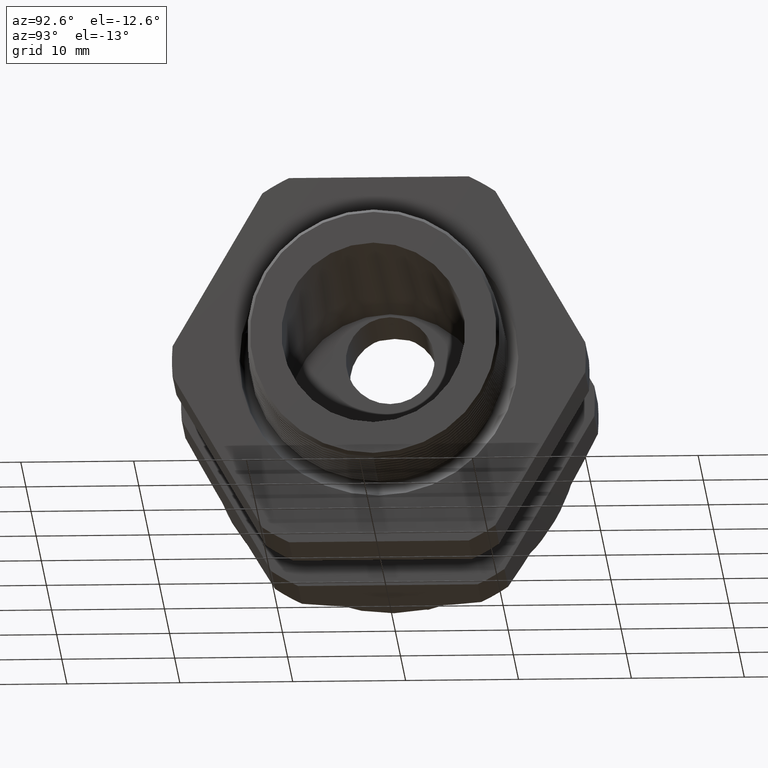
[diagram: clean part render]
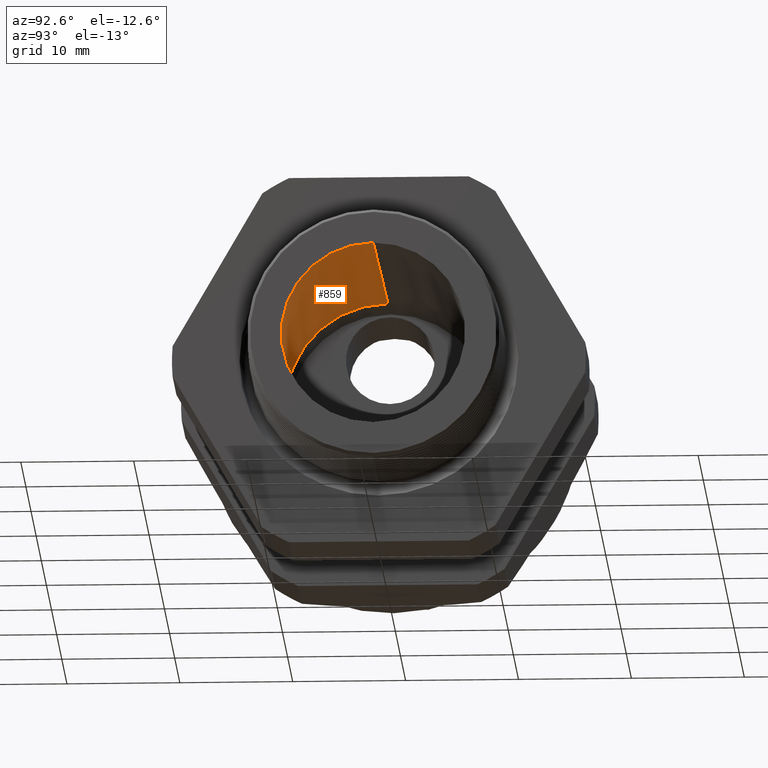
[diagram: same view with one face highlighted and labeled with its STEP entity id]
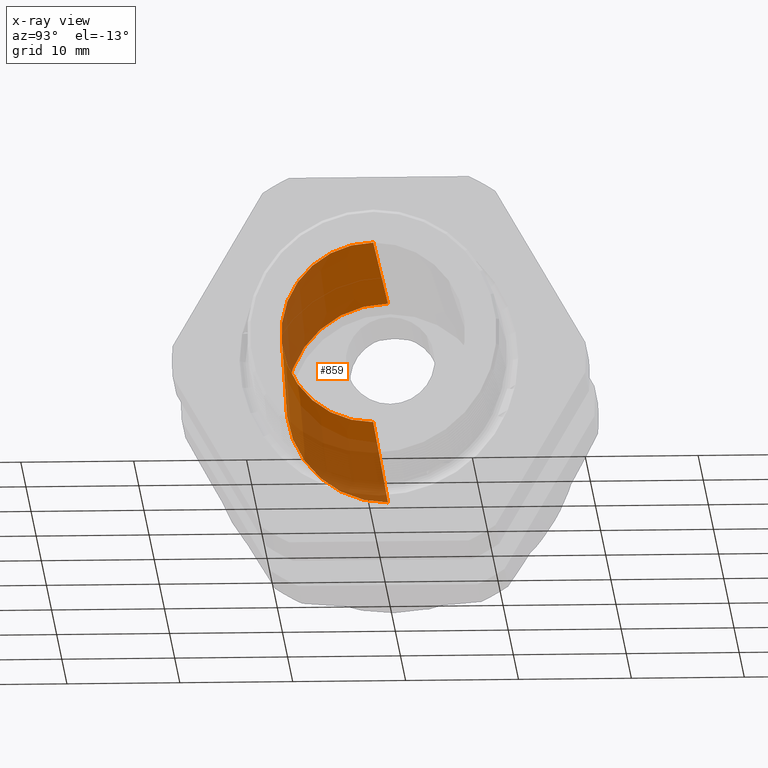
[diagram: x-ray of the same camera — body ghosted, the highlighted face saturated]
A machine part, auxiliary view. The second image highlights one B-rep face of the part: STEP entity #859.
The next image is the same camera in x-ray: the body ghosted, the highlighted face saturated — about 39% of this face is hidden behind the body in this view.
In plain terms, the highlighted conical surface has half-angle 1.753 deg.
Its self-contained STEP definition (entity closure, byte-faithful):
#611 = ORIENTED_EDGE ( 'NONE', *, *, #837, .T. ) ;
#837 = EDGE_CURVE ( 'NONE', #864, #838, #3032, .T. ) ;
#838 = VERTEX_POINT ( 'NONE', #3028 ) ;
#839 = ORIENTED_EDGE ( 'NONE', *, *, #840, .F. ) ;
#840 = EDGE_CURVE ( 'NONE', #841, #838, #3094, .T. ) ;
#841 = VERTEX_POINT ( 'NONE', #3088 ) ;
#842 = ORIENTED_EDGE ( 'NONE', *, *, #843, .F. ) ;
#843 = EDGE_CURVE ( 'NONE', #863, #841, #3087, .T. ) ;
#859 = ADVANCED_FACE ( 'NONE', ( #3118 ), #3116, .F. ) ;
#860 = EDGE_LOOP ( 'NONE', ( #861, #611, #839, #842 ) ) ;
#861 = ORIENTED_EDGE ( 'NONE', *, *, #862, .T. ) ;
#862 = EDGE_CURVE ( 'NONE', #863, #864, #3110, .T. ) ;
#863 = VERTEX_POINT ( 'NONE', #3106 ) ;
#864 = VERTEX_POINT ( 'NONE', #3105 ) ;
#3028 = CARTESIAN_POINT ( 'NONE',  ( -1.010314960629921100, 0.0000000000000000000, -0.3549999999999999800 ) ) ;
#3029 = DIRECTION ( 'NONE',  ( -0.9995318591926351000, 3.746823761453372400E-018, -0.03059513783126741000 ) ) ;
#3030 = VECTOR ( 'NONE', #3029, 39.37007874015748900 ) ;
#3031 = CARTESIAN_POINT ( 'NONE',  ( -1.010314960629921100, 4.347496136973103500E-017, -0.3549999999999999800 ) ) ;
#3032 = LINE ( 'NONE', #3031, #3030 ) ;
#3084 = DIRECTION ( 'NONE',  ( -0.9995318591926351000, 0.0000000000000000000, 0.03059513783126741000 ) ) ;
#3085 = VECTOR ( 'NONE', #3084, 39.37007874015748900 ) ;
#3086 = CARTESIAN_POINT ( 'NONE',  ( -1.010314960629921100, 0.0000000000000000000, 0.3549999999999999800 ) ) ;
#3087 = LINE ( 'NONE', #3086, #3085 ) ;
#3088 = CARTESIAN_POINT ( 'NONE',  ( -1.010314960629921100, 4.347496136973103500E-017, 0.3549999999999999800 ) ) ;
#3089 = DIRECTION ( 'NONE',  ( 0.0000000000000000000, 0.0000000000000000000, -1.000000000000000000 ) ) ;
#3090 = DIRECTION ( 'NONE',  ( 1.000000000000000000, 0.0000000000000000000, 0.0000000000000000000 ) ) ;
#3091 = CARTESIAN_POINT ( 'NONE',  ( -1.010314960629921100, 0.0000000000000000000, 0.0000000000000000000 ) ) ;
#3093 = AXIS2_PLACEMENT_3D ( 'NONE', #3091, #3090, #3089 ) ;
#3094 = CIRCLE ( 'NONE', #3093, 0.3549999999999999800 ) ;
#3105 = CARTESIAN_POINT ( 'NONE',  ( 0.1200000000000000200, 4.135642411978520400E-017, -0.3204016610924743100 ) ) ;
#3106 = CARTESIAN_POINT ( 'NONE',  ( 0.1200000000000000200, 0.0000000000000000000, 0.3204016610924743100 ) ) ;
#3107 = DIRECTION ( 'NONE',  ( 0.0000000000000000000, 0.0000000000000000000, -1.000000000000000000 ) ) ;
#3108 = DIRECTION ( 'NONE',  ( 1.000000000000000000, 0.0000000000000000000, 0.0000000000000000000 ) ) ;
#3109 = AXIS2_PLACEMENT_3D ( 'NONE', #3117, #3108, #3107 ) ;
#3110 = CIRCLE ( 'NONE', #3109, 0.3204016610924743100 ) ;
#3112 = DIRECTION ( 'NONE',  ( 0.0000000000000000000, 0.0000000000000000000, 1.000000000000000000 ) ) ;
#3113 = DIRECTION ( 'NONE',  ( -1.000000000000000000, 0.0000000000000000000, 0.0000000000000000000 ) ) ;
#3114 = CARTESIAN_POINT ( 'NONE',  ( -1.010314960629921100, 0.0000000000000000000, 0.0000000000000000000 ) ) ;
#3115 = AXIS2_PLACEMENT_3D ( 'NONE', #3114, #3113, #3112 ) ;
#3116 = CONICAL_SURFACE ( 'NONE', #3115, 0.3549999999999999800, 0.03059991300296905500 ) ;
#3117 = CARTESIAN_POINT ( 'NONE',  ( 0.1200000000000000200, 0.0000000000000000000, 0.0000000000000000000 ) ) ;
#3118 = FACE_OUTER_BOUND ( 'NONE', #860, .T. ) ;